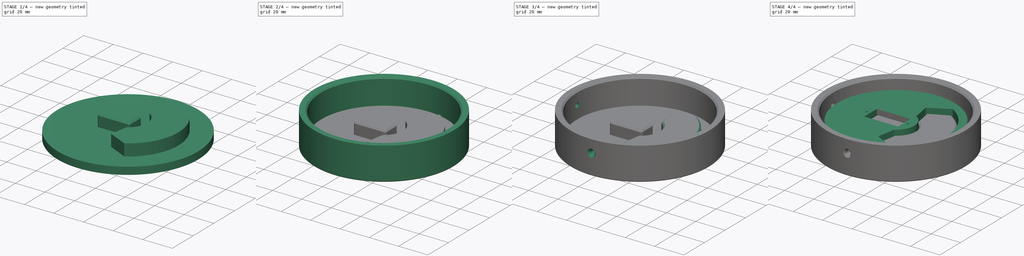
[diagram: build sequence overview — one tinted view per stage of 4, left to right]
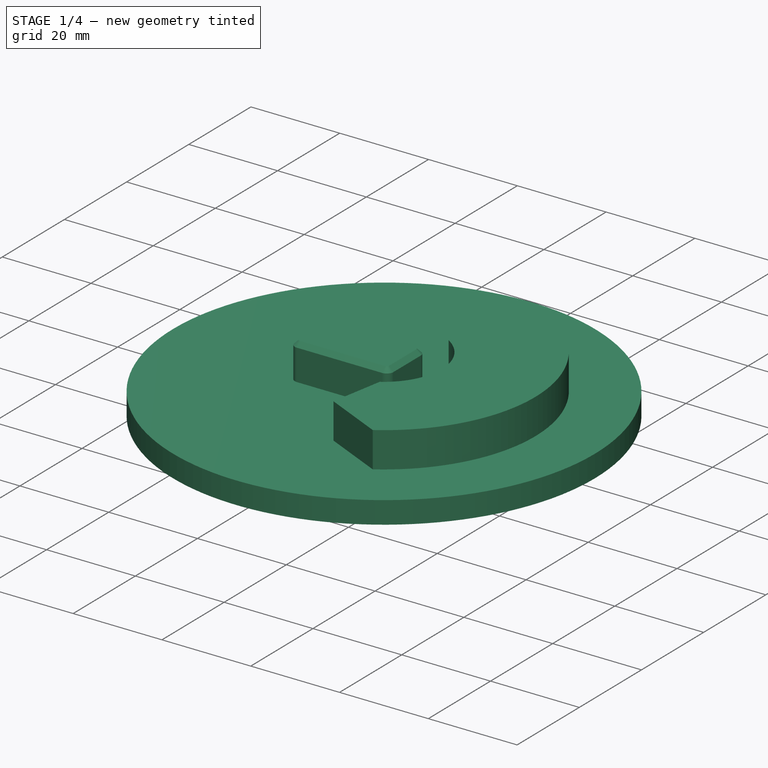
[diagram: stage 1 of 4 — iso view after this stage's code; geometry added in this stage tinted green]
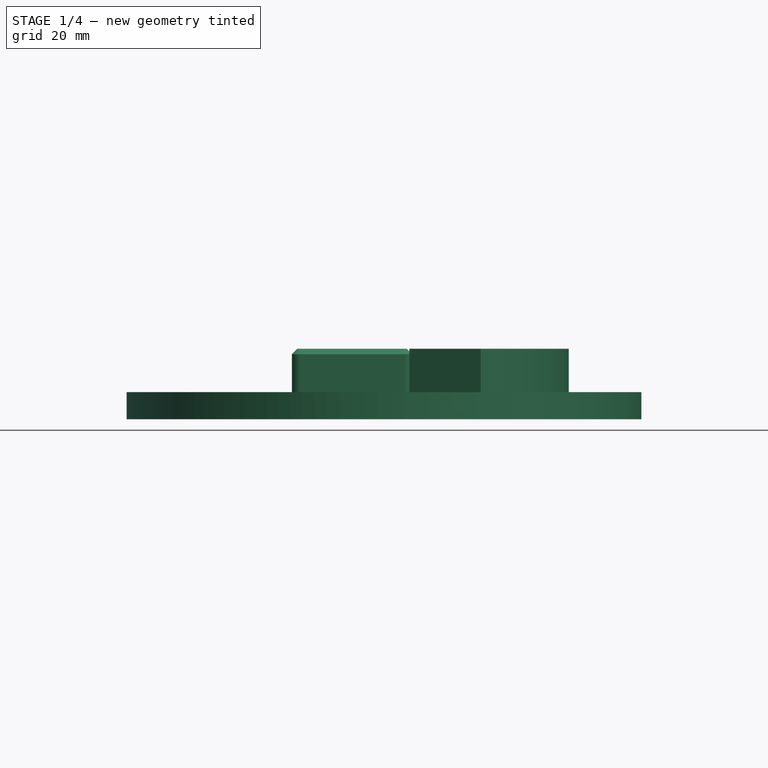
[diagram: stage 1 of 4 — front view after this stage's code; geometry added in this stage tinted green]
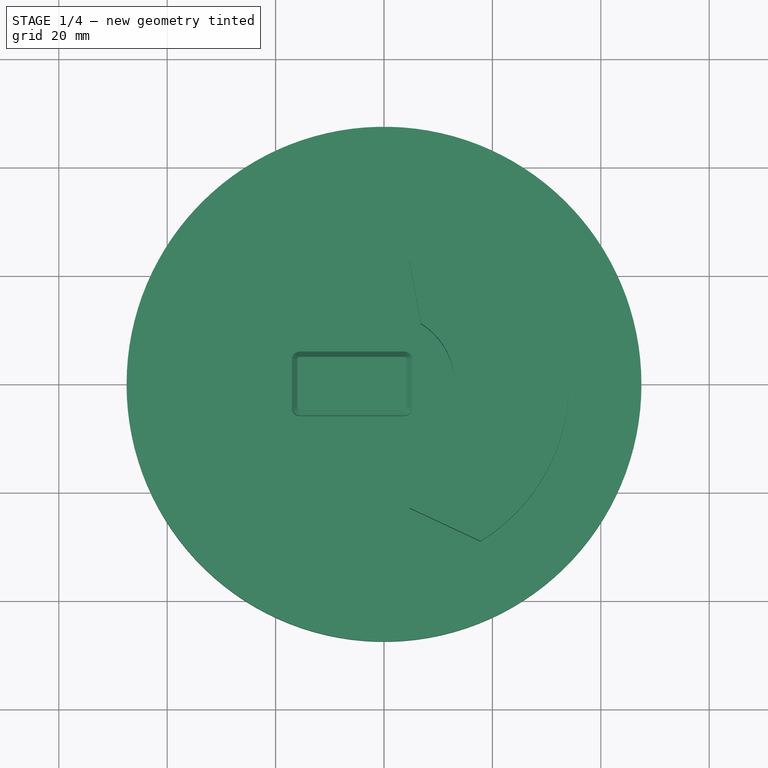
[diagram: stage 1 of 4 — top view after this stage's code; geometry added in this stage tinted green]
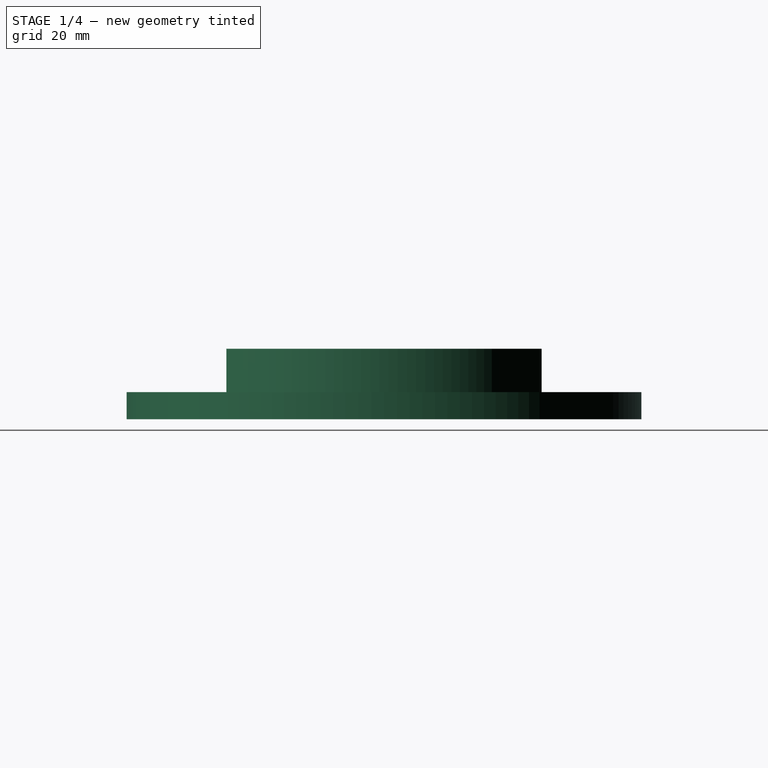
[diagram: stage 1 of 4 — right view after this stage's code; geometry added in this stage tinted green]
FCSTD DOCUMENT  (FreeCAD 1.0R39109 (Git))
Label: Top Servo Layer Jig
License: All rights reserved
LicenseURL: https://en.wikipedia.org/wiki/All_rights_reserved
objects: Sketcher::SketchObject×7, PartDesign::Chamfer×6, PartDesign::Pad×4, PartDesign::Pocket×3, PartDesign::Body×2, PartDesign::Plane×2, App::VarSet×1
note: 57 computed .brp shape members not serialized (recipe doc carries the construction recipe); baked Part::Feature solids carry a one-line shape summary decoded from their .brp

FEATURE [PartDesign::Body] Body010  label="top_layer"
  AllowCompound = false
  Group = -> [Sketch021,Pad010]
  Origin = -> Origin012
  Tip = -> Pad010
FEATURE [App::VarSet] VarSet
  Pipe_thickness = 5
  dowel_dia = 6.2
  fillet_radius = 1.5
  gem_hole_dia = 15.5
  gem_hole_offset = 20
  mdf_thickness = 7.5
  pipe_OD = 90
  rotation_tolerence = 2.5
  servo_leg_height = 24
  servo_length = 23
  servo_width = 12.3
  shaft_width = 9
  test_tube_dia = 17
  tube_inner_dia = 79.9
FEATURE [Sketcher::SketchObject] Sketch
  ArcFitTolerance = 1e-06
  AttachmentSupport = -> [XY_Plane]
  FullyConstrained = true
  MakeInternals = false
  MapMode = 5
  expr: Constraints[1] = 95
  sketch-geometry (1):
    g0: Circle CenterX=0 CenterY=0 CenterZ=0 NormalX=0 NormalY=0 NormalZ=1 AngleXU=0 Radius=47.5
  constraints (2):
    c: Coincident(g0,g-1)
    c: Diameter(g0) = 95
FEATURE [PartDesign::Pad] Pad
  Direction = (0,0,1)
  Length = 5
  Length2 = 10
  Profile = -> Sketch
  ReferenceAxis = -> Sketch [N_Axis]
  Refine = true
  Suppressed = false
  Type = 0
FEATURE [Sketcher::SketchObject] Sketch022
  ArcFitTolerance = 1e-06
  AttachmentSupport = -> [Pad]
  FullyConstrained = true
  MakeInternals = false
  MapMode = 5
  Placement = pos=(0,0,5) rot=(0,0,1;0rad)
  sketch-geometry (23):
    g0: LineSegment StartX=-15.5 StartY=-5.9 StartZ=0 EndX=3.7 EndY=-5.9 EndZ=0
    g1: LineSegment StartX=5.2 StartY=-4.4 StartZ=0 EndX=5.2 EndY=4.4 EndZ=0
    g2: LineSegment StartX=3.7 StartY=5.9 StartZ=0 EndX=-15.5 EndY=5.9 EndZ=0
    g3: LineSegment StartX=-17 StartY=4.4 StartZ=0 EndX=-17 EndY=-4.4 EndZ=0
    g4: GeomPoint [constr] X=-5.9 Y=0 Z=0
    g5: ArcOfCircle CenterX=-15.5 CenterY=4.4 CenterZ=0 NormalX=0 NormalY=0 NormalZ=1 AngleXU=0 Radius=1.5 StartAngle=1.5708 EndAngle=3.14159
    g6: GeomPoint [constr] X=-17 Y=5.9 Z=0
    g7: ArcOfCircle CenterX=3.7 CenterY=4.4 CenterZ=0 NormalX=0 NormalY=0 NormalZ=1 AngleXU=0 Radius=1.5 StartAngle=2e-16 EndAngle=1.5708
    g8: GeomPoint [constr] X=5.2 Y=5.9 Z=0
    g9: ArcOfCircle CenterX=3.7 CenterY=-4.4 CenterZ=0 NormalX=0 NormalY=0 NormalZ=1 AngleXU=0 Radius=1.5 StartAngle=4.71239 EndAngle=6.28319
    g10: GeomPoint [constr] X=5.2 Y=-5.9 Z=0
    g11: ArcOfCircle CenterX=-15.5 CenterY=-4.4 CenterZ=0 NormalX=0 NormalY=0 NormalZ=1 AngleXU=0 Radius=1.5 StartAngle=3.14159 EndAngle=4.71239
    g12: GeomPoint [constr] X=-17 Y=-5.9 Z=0
    g13: LineSegment [constr] StartX=0 StartY=0 StartZ=0 EndX=17.8172 EndY=29.075 EndZ=0
    g14: LineSegment [constr] StartX=0 StartY=0 StartZ=0 EndX=17.8172 EndY=-29.075 EndZ=0
    g15: ArcOfCircle CenterX=0 CenterY=0 CenterZ=0 NormalX=0 NormalY=0 NormalZ=1 AngleXU=0 Radius=13 StartAngle=5.26217 EndAngle=7.3042
    g16: ArcOfCircle CenterX=0 CenterY=0 CenterZ=0 NormalX=0 NormalY=0 NormalZ=1 AngleXU=0 Radius=34.1 StartAngle=5.26217 EndAngle=7.3042
    g17: LineSegment StartX=6.79248 StartY=-11.0843 StartZ=0 EndX=4.67385 EndY=-22.9381 EndZ=0
    g18: LineSegment StartX=17.8172 StartY=-29.075 StartZ=0 EndX=4.67385 EndY=-22.9381 EndZ=0
    g19: LineSegment StartX=17.8172 StartY=29.075 StartZ=0 EndX=4.67385 EndY=22.9381 EndZ=0
    g20: LineSegment StartX=4.67385 StartY=22.9381 StartZ=0 EndX=6.79248 EndY=11.0843 EndZ=0
    g21: LineSegment [constr] StartX=4.67385 StartY=22.9381 StartZ=0 EndX=11.495 EndY=18.7581 EndZ=0
    g22: LineSegment [constr] StartX=4.67385 StartY=-22.9381 StartZ=0 EndX=11.495 EndY=-18.7581 EndZ=0
  constraints (57):
    c: Horizontal(g0)
    c: Horizontal(g2)
    c: Vertical(g1)
    c: Vertical(g3)
    c: Symmetric(g8,g12,g4)
    c: Distance(g10,g12) = 22.2
    c: Distance(g12,g6) = 11.8
    c: PointOnObject(g4,g-1)
    c: DistanceX(g4,g-1) = 5.9
    c: PointOnObject(g6,g3)
    c: PointOnObject(g6,g2)
    c: Tangent(g3,g5) = -1.5708
    c: Tangent(g2,g5) = -1.5708
    c: PointOnObject(g8,g2)
    c: PointOnObject(g8,g1)
    c: Tangent(g2,g7) = -1.5708
    c: Tangent(g1,g7) = -1.5708
    c: PointOnObject(g10,g1)
    c: PointOnObject(g10,g0)
    c: Tangent(g1,g9) = -1.5708
    c: Tangent(g0,g9) = -1.5708
    c: PointOnObject(g12,g0)
    c: PointOnObject(g12,g3)
    c: Tangent(g0,g11) = -1.5708
    c: Tangent(g3,g11) = -1.5708
    c: Diameter(g5) = 3
    c: Diameter(g7) = 3
    c: Diameter(g9) = 3
    c: Diameter(g11) = 3
    c: Distance(g14,g14) = 34.1
    c: Angle(g14,g13) = 2.04204
    c: Angle(g13,g-2) = 0.549779
    c: PointOnObject(g15,g13)
    c: PointOnObject(g15,g14)
    c: Diameter(g15) = 26
    c: Coincident(g16,g14)
    c: Coincident(g13,g16)
    c: Coincident(g17,g15)
    c: Coincident(g18,g14)
    c: Coincident(g18,g17)
    c: Coincident(g19,g13)
    c: Coincident(g20,g19)
    c: Coincident(g20,g15)
    c: Coincident(g14,g-1)
    c: Coincident(g14,g15)
    c: Coincident(g16,g13)
    c: Coincident(g13,g14)
    c: Coincident(g21,g19)
    c: PointOnObject(g21,g13)
    c: Distance(g21) = 8
    c: Distance(g21,g13) = 22
    c: Perpendicular(g13,g21)
    c: Coincident(g22,g17)
    c: PointOnObject(g22,g14)
    c: Perpendicular(g14,g22)
    c: Distance(g13,g22) = 22
    c: Distance(g22) = 8
FEATURE [PartDesign::Pad] Pad011
  BaseFeature = -> Pad
  Direction = (0,0,1)
  Length = 8
  Length2 = 10
  Profile = -> Sketch022
  ReferenceAxis = -> Sketch022 [N_Axis]
  Refine = true
  Suppressed = false
  Type = 0
FEATURE [PartDesign::Chamfer] Chamfer
  Angle = 45
  Base = -> Pad011 [Edge20]
  BaseFeature = -> Pad011
  ChamferType = 0
  FlipDirection = false
  Refine = true
  Size = 1
  Size2 = 1
  SupportTransform = false
  Suppressed = false
  UseAllEdges = false
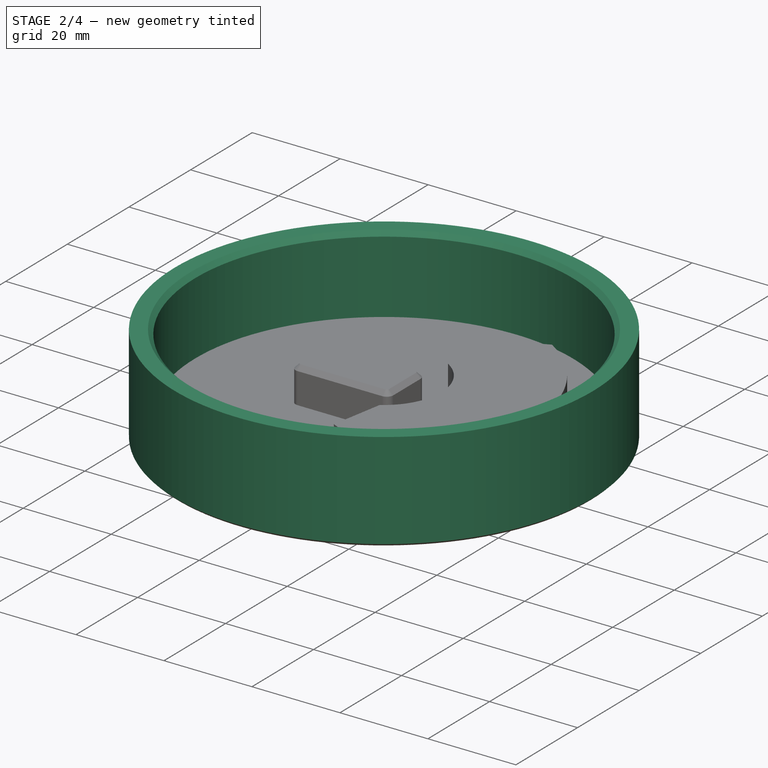
[diagram: stage 2 of 4 — iso view after this stage's code; geometry added in this stage tinted green]
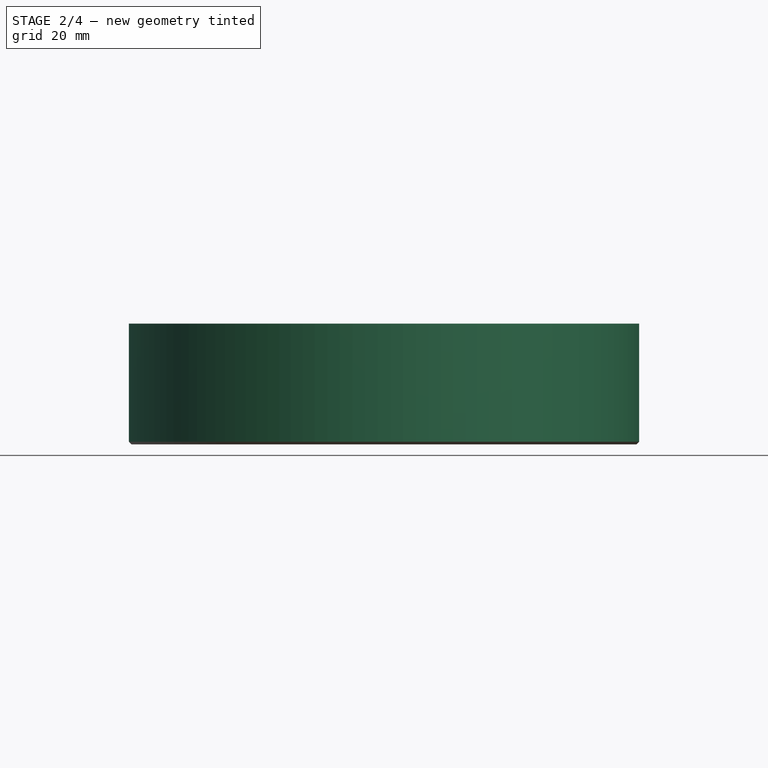
[diagram: stage 2 of 4 — front view after this stage's code; geometry added in this stage tinted green]
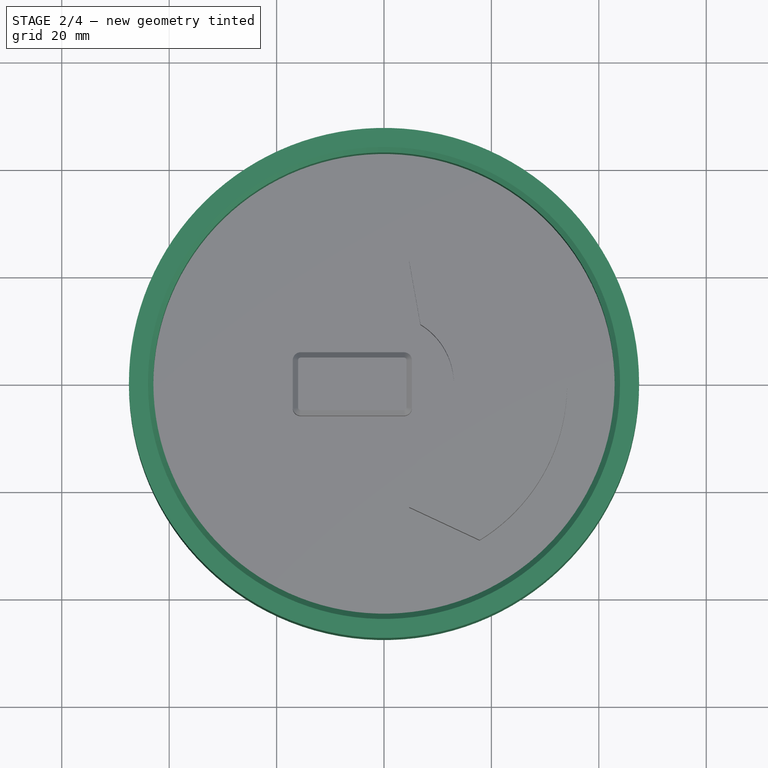
[diagram: stage 2 of 4 — top view after this stage's code; geometry added in this stage tinted green]
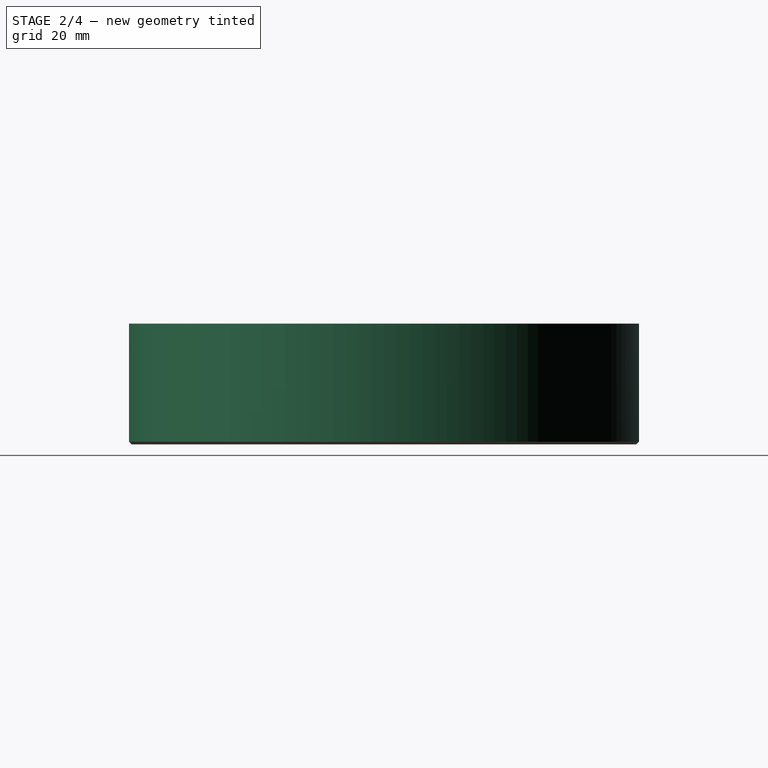
[diagram: stage 2 of 4 — right view after this stage's code; geometry added in this stage tinted green]
FEATURE [Sketcher::SketchObject] Sketch023
  ArcFitTolerance = 1e-06
  AttachmentSupport = -> [Chamfer]
  FullyConstrained = true
  MakeInternals = false
  MapMode = 5
  Placement = pos=(0,0,5) rot=(0,0,1;0rad)
  sketch-geometry (2):
    g0: Circle CenterX=0 CenterY=0 CenterZ=0 NormalX=0 NormalY=0 NormalZ=1 AngleXU=0 Radius=47.5
    g1: Circle CenterX=0 CenterY=0 CenterZ=0 NormalX=0 NormalY=0 NormalZ=1 AngleXU=0 Radius=42.95
  constraints (4):
    c: Diameter(g0) = 95
    c: Coincident(g0,g-1)
    c: Diameter(g1) = 85.9
    c: Coincident(g1,g0)
FEATURE [PartDesign::Pad] Pad012
  BaseFeature = -> Chamfer
  Direction = (0,0,1)
  Length = 17.5
  Length2 = 10
  Profile = -> Sketch023
  ReferenceAxis = -> Sketch023 [N_Axis]
  Refine = true
  Suppressed = false
  Type = 0
FEATURE [PartDesign::Chamfer] Chamfer001
  Angle = 45
  Base = -> Pad012 [Edge41]
  BaseFeature = -> Pad012
  ChamferType = 0
  FlipDirection = false
  Refine = true
  Size = 1
  Size2 = 1
  SupportTransform = false
  Suppressed = false
  UseAllEdges = false
FEATURE [PartDesign::Chamfer] Chamfer002
  Angle = 45
  Base = -> Chamfer001 [Edge49]
  BaseFeature = -> Chamfer001
  ChamferType = 0
  FlipDirection = false
  Refine = true
  Size = 0.5
  Size2 = 1
  SupportTransform = false
  Suppressed = false
  UseAllEdges = false
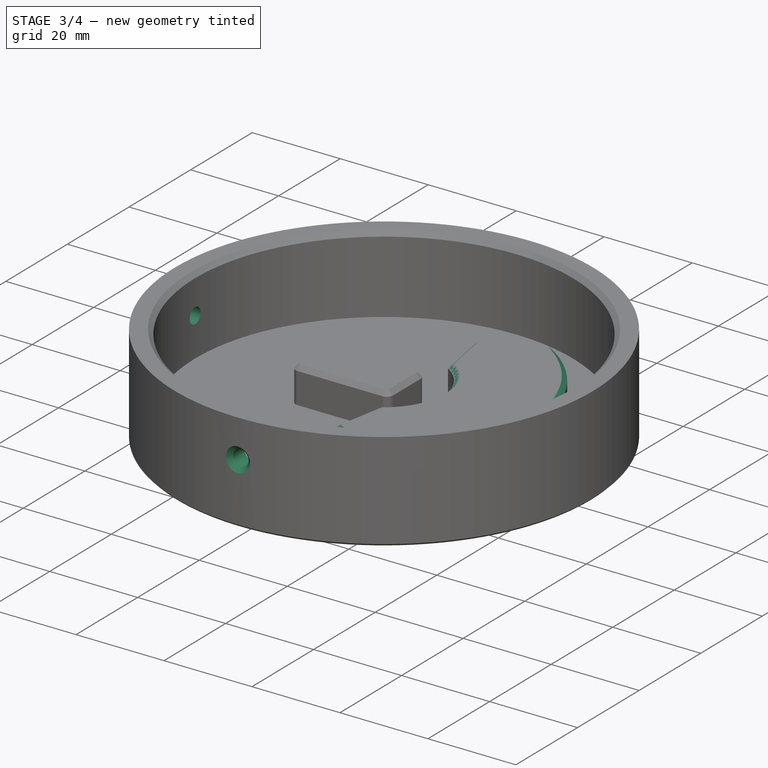
[diagram: stage 3 of 4 — iso view after this stage's code; geometry added in this stage tinted green]
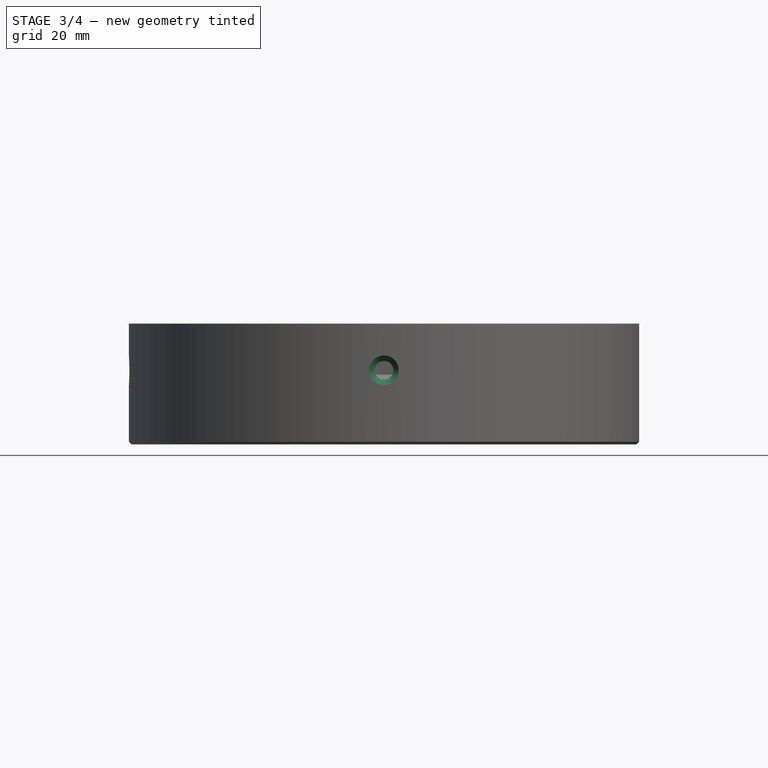
[diagram: stage 3 of 4 — front view after this stage's code; geometry added in this stage tinted green]
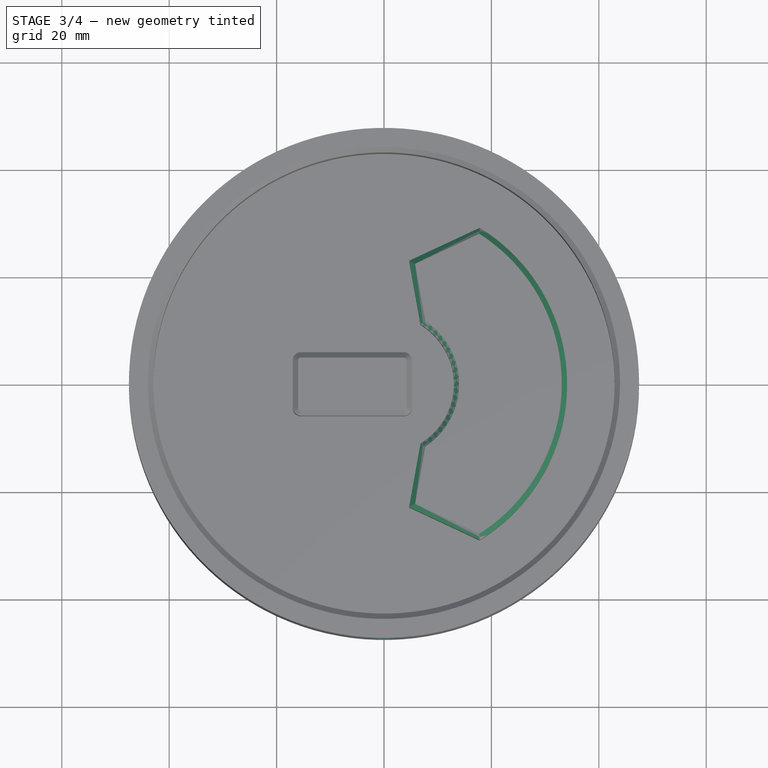
[diagram: stage 3 of 4 — top view after this stage's code; geometry added in this stage tinted green]
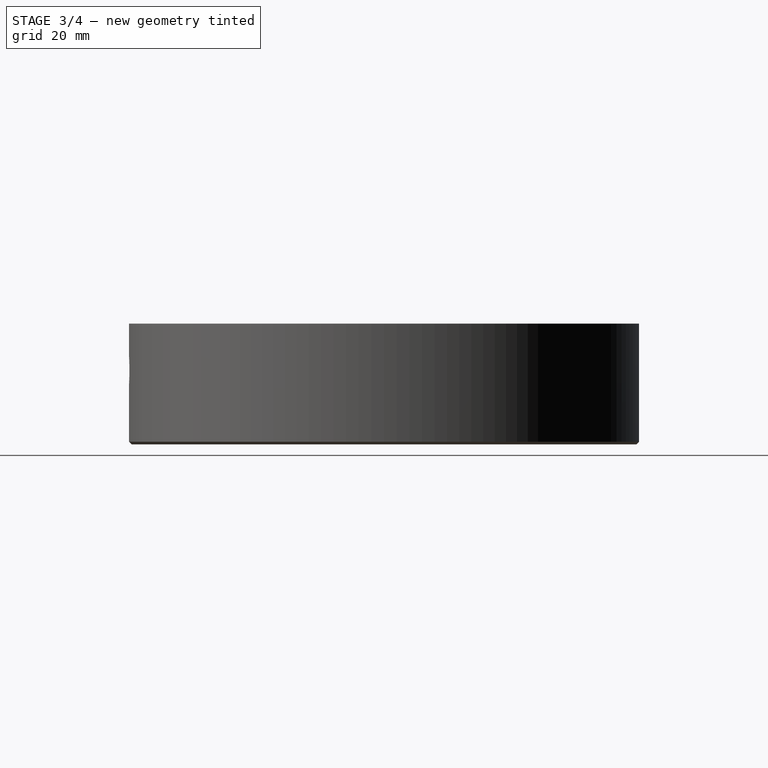
[diagram: stage 3 of 4 — right view after this stage's code; geometry added in this stage tinted green]
FEATURE [PartDesign::Plane] DatumPlane
  AttachmentOffset = pos=(-50,0,0) rot=(0,1,0;1.5708rad)
  AttachmentSupport = -> [Chamfer002]
  Length = 60
  MapMode = 5
  Placement = pos=(-50,0,22.5) rot=(0,1,0;1.5708rad)
  ResizeMode = 0
  Width = 60
FEATURE [PartDesign::Plane] DatumPlane001
  AttachmentOffset = pos=(0,-50,0) rot=(1,0,0;1.5708rad)
  AttachmentSupport = -> [Chamfer002]
  Length = 60
  MapMode = 5
  Placement = pos=(0,-50,22.5) rot=(1,0,0;1.5708rad)
  ResizeMode = 0
  Width = 60
  expr: .AttachmentOffset.Base.y = -50 mm
FEATURE [Sketcher::SketchObject] Sketch024
  ArcFitTolerance = 1e-06
  AttachmentSupport = -> [DatumPlane]
  FullyConstrained = true
  MakeInternals = false
  MapMode = 5
  Placement = pos=(-50,0,22.5) rot=(0,1,0;1.5708rad)
  sketch-geometry (1):
    g0: Circle CenterX=8.7 CenterY=0 CenterZ=0 NormalX=0 NormalY=0 NormalZ=1 AngleXU=0 Radius=1.75
  constraints (3):
    c: Diameter(g0) = 3.5
    c: PointOnObject(g0,g-1)
    c: DistanceX(g-1,g0) = 8.7
FEATURE [PartDesign::Pocket] Pocket
  BaseFeature = -> Chamfer002
  Direction = (-1,0,-2e-16)
  Length = 8
  Length2 = 5
  Profile = -> Sketch024
  ReferenceAxis = -> Sketch024 [N_Axis]
  Refine = true
  Reversed = true
  Suppressed = false
  Type = 0
FEATURE [Sketcher::SketchObject] Sketch025
  ArcFitTolerance = 1e-06
  AttachmentSupport = -> [DatumPlane001]
  FullyConstrained = true
  MakeInternals = false
  MapMode = 5
  Placement = pos=(0,-50,22.5) rot=(1,0,0;1.5708rad)
  sketch-geometry (1):
    g0: Circle CenterX=0 CenterY=-8.7 CenterZ=0 NormalX=0 NormalY=0 NormalZ=1 AngleXU=0 Radius=1.75
  constraints (3):
    c: Diameter(g0) = 3.5
    c: PointOnObject(g0,g-2)
    c: DistanceY(g0,g-1) = 8.7
FEATURE [PartDesign::Pocket] Pocket001
  BaseFeature = -> Pocket
  Direction = (0,1,-2e-16)
  Length = 8
  Length2 = 5
  Profile = -> Sketch025
  ReferenceAxis = -> Sketch025 [N_Axis]
  Refine = true
  Suppressed = false
  Type = 0
FEATURE [PartDesign::Chamfer] Chamfer003
  Angle = 45
  Base = -> Pocket001 [Edge4,Edge5]
  BaseFeature = -> Pocket001
  ChamferType = 0
  FlipDirection = false
  Refine = true
  Size = 1
  Size2 = 1
  SupportTransform = false
  Suppressed = false
  UseAllEdges = false
FEATURE [PartDesign::Chamfer] Chamfer004
  Angle = 45
  Base = -> Chamfer003 [Edge59,Edge62,Edge61,Edge57,Edge53,Edge55]
  BaseFeature = -> Chamfer003
  ChamferType = 0
  FlipDirection = false
  Refine = true
  Size = 1
  Size2 = 1
  SupportTransform = false
  Suppressed = false
  UseAllEdges = false
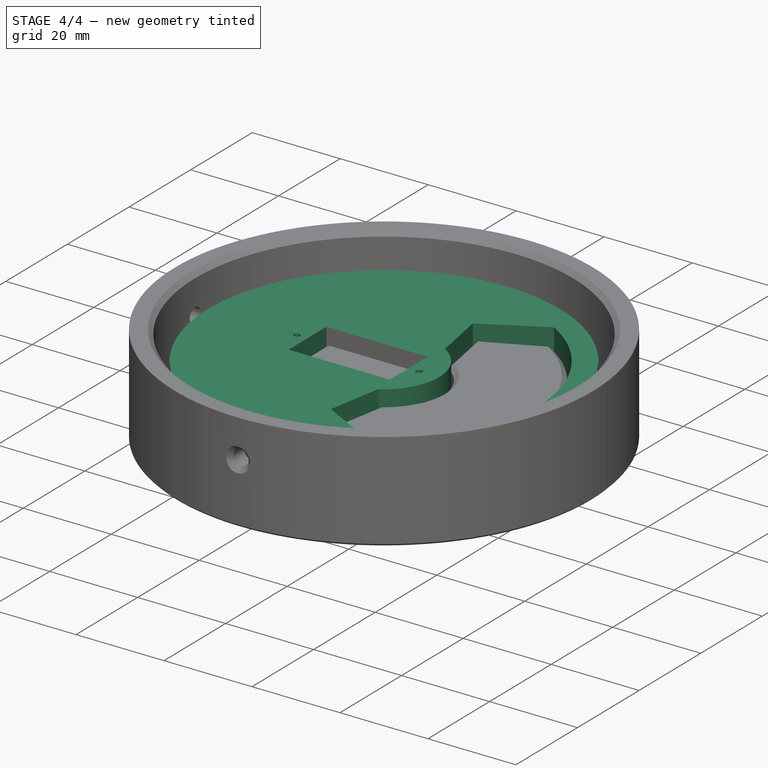
[diagram: stage 4 of 4 — iso view after this stage's code; geometry added in this stage tinted green]
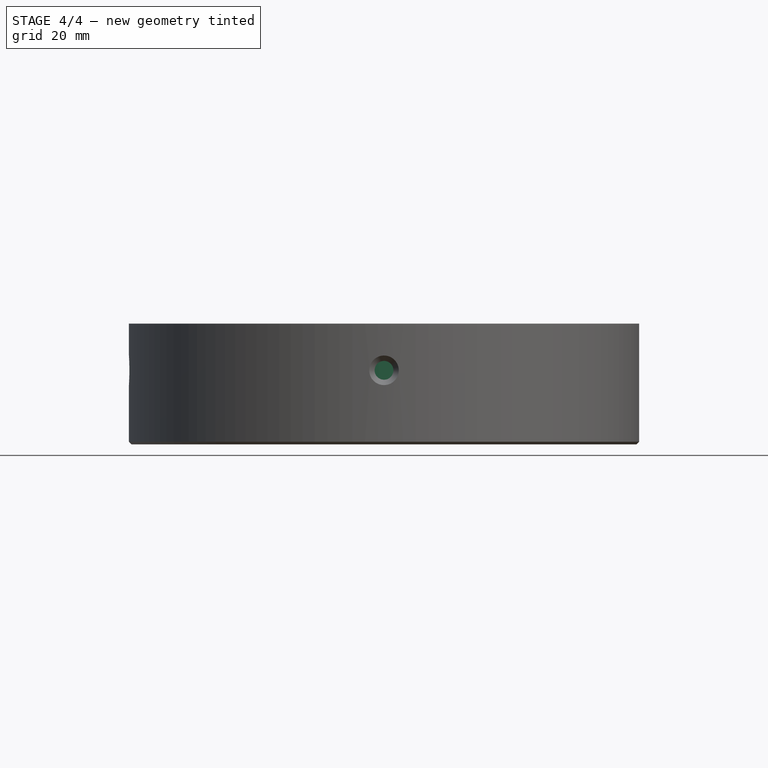
[diagram: stage 4 of 4 — front view after this stage's code; geometry added in this stage tinted green]
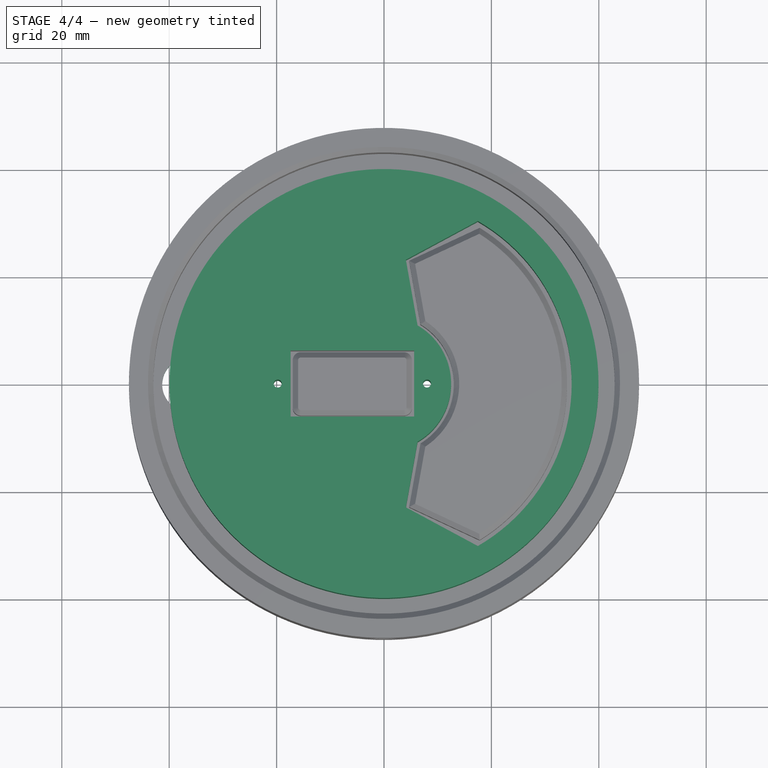
[diagram: stage 4 of 4 — top view after this stage's code; geometry added in this stage tinted green]
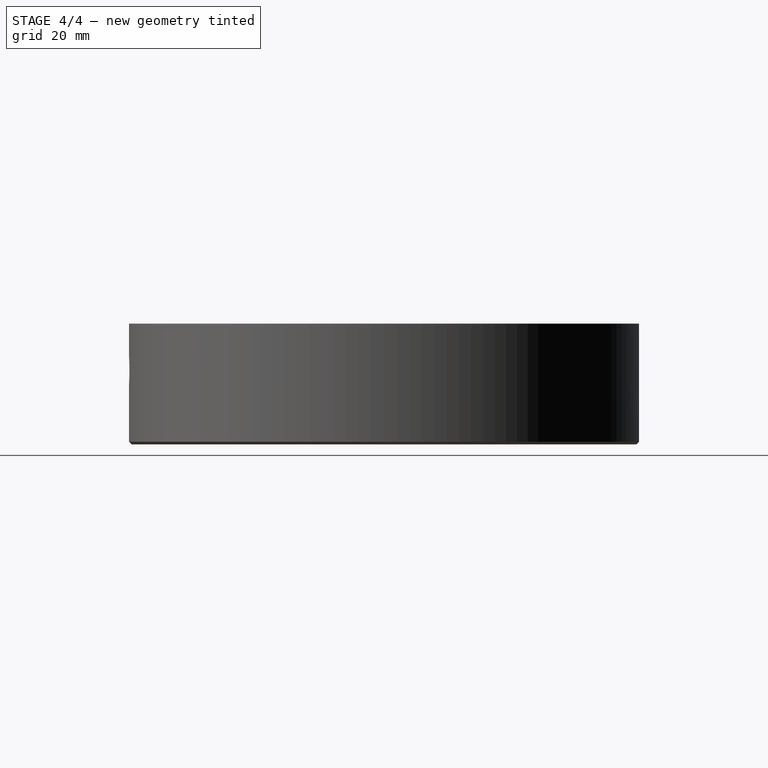
[diagram: stage 4 of 4 — right view after this stage's code; geometry added in this stage tinted green]
FEATURE [Sketcher::SketchObject] Sketch021
  ArcFitTolerance = 1e-06
  AttachmentSupport = -> [XY_Plane012]
  FullyConstrained = true
  MakeInternals = false
  MapMode = 5
  sketch-geometry (18):
    g0: Circle CenterX=0 CenterY=0 CenterZ=0 NormalX=0 NormalY=0 NormalZ=1 AngleXU=0 Radius=39.95
    g1: LineSegment [constr] StartX=0 StartY=0 StartZ=0 EndX=17.475 EndY=30.2676 EndZ=0
    g2: LineSegment [constr] StartX=0 StartY=0 StartZ=0 EndX=17.475 EndY=-30.2676 EndZ=0
    g3: ArcOfCircle CenterX=0 CenterY=0 CenterZ=0 NormalX=0 NormalY=0 NormalZ=1 AngleXU=0 Radius=12.5 StartAngle=5.23599 EndAngle=7.33038
    g4: ArcOfCircle CenterX=0 CenterY=0 CenterZ=0 NormalX=0 NormalY=0 NormalZ=1 AngleXU=0 Radius=34.95 StartAngle=5.23599 EndAngle=7.33038
    g5: LineSegment StartX=6.25 StartY=-10.8253 StartZ=0 EndX=4.07179 EndY=-23.0526 EndZ=0
    g6: LineSegment StartX=17.475 StartY=-30.2676 StartZ=0 EndX=4.07179 EndY=-23.0526 EndZ=0
    g7: LineSegment StartX=17.475 StartY=30.2676 StartZ=0 EndX=4.0718 EndY=23.0526 EndZ=0
    g8: LineSegment StartX=4.0718 StartY=23.0526 StartZ=0 EndX=6.25 EndY=10.8253 EndZ=0
    g9: LineSegment [constr] StartX=11 StartY=-19.0526 StartZ=0 EndX=4.07179 EndY=-23.0526 EndZ=0
    g10: LineSegment [constr] StartX=11 StartY=19.0526 StartZ=0 EndX=4.0718 EndY=23.0526 EndZ=0
    g11: LineSegment StartX=-17.4 StartY=6.15 StartZ=0 EndX=-17.4 EndY=-6.15 EndZ=0
    g12: LineSegment StartX=-17.4 StartY=-6.15 StartZ=0 EndX=5.6 EndY=-6.15 EndZ=0
    g13: LineSegment StartX=5.6 StartY=-6.15 StartZ=0 EndX=5.6 EndY=6.15 EndZ=0
    g14: LineSegment StartX=5.6 StartY=6.15 StartZ=0 EndX=-17.4 EndY=6.15 EndZ=0
    g15: GeomPoint [constr] X=-5.9 Y=0 Z=0
    g16: Circle CenterX=8 CenterY=0 CenterZ=0 NormalX=0 NormalY=0 NormalZ=1 AngleXU=0 Radius=0.75
    g17: Circle CenterX=-19.8 CenterY=0 CenterZ=0 NormalX=0 NormalY=0 NormalZ=1 AngleXU=0 Radius=0.75
  constraints (49):
    c: Coincident(g0,g-1)
    c: Diameter(g0) = 79.9
    c: Coincident(g1,g0)
    c: Coincident(g2,g0)
    c: Distance(g2,g2) = 34.95
    c: Angle(g2,g1) = 2.0944
    c: Angle(g1,g-2) = 0.523599
    c: Coincident(g3,g0)
    c: PointOnObject(g3,g1)
    c: PointOnObject(g3,g2)
    c: Diameter(g3) = 25
    c: Coincident(g4,g0)
    c: Coincident(g4,g2)
    c: Coincident(g1,g4)
    c: Coincident(g5,g3)
    c: Coincident(g6,g2)
    c: Coincident(g6,g5)
    c: Coincident(g7,g1)
    c: Coincident(g8,g7)
    c: Coincident(g8,g3)
    c: PointOnObject(g9,g2)
    c: Coincident(g9,g5)
    c: Perpendicular(g2,g9)
    c: PointOnObject(g10,g1)
    c: Coincident(g10,g7)
    c: Distance(g9,g-1) = 22
    c: Distance(g9,g5) = 8
    c: Distance(g10,g7) = 8
    c: Perpendicular(g1,g10)
    c: Distance(g10,g-1) = 22
    c: Coincident(g11,g12)
    c: Coincident(g12,g13)
    c: Coincident(g13,g14)
    c: Coincident(g14,g11)
    c: Vertical(g11)
    c: Vertical(g13)
    c: Horizontal(g12)
    c: Horizontal(g14)
    c: Symmetric(g13,g11,g15)
    c: PointOnObject(g15,g-1)
    c: DistanceY(g11,g11) = 12.3
    c: DistanceX(g14,g14) = 23
    c: DistanceX(g15,g-1) = 5.9
    c: Diameter(g16) = 1.5
    c: PointOnObject(g16,g-1)
    c: Diameter(g17) = 1.5
    c: PointOnObject(g17,g-1)
    c: Distance(g17,g11) = 2.4
    c: Distance(g16,g13) = 2.4
FEATURE [PartDesign::Pad] Pad010
  Direction = (0,0,1)
  Length = 16
  Length2 = 10
  Profile = -> Sketch021
  ReferenceAxis = -> Sketch021 [N_Axis]
  Refine = true
  Suppressed = false
  Type = 0
FEATURE [Sketcher::SketchObject] Sketch026
  ArcFitTolerance = 1e-06
  AttachmentSupport = -> [Chamfer004]
  FullyConstrained = true
  MakeInternals = false
  MapMode = 5
  Placement = pos=(0,0,5) rot=(0,0,1;0rad)
  sketch-geometry (3):
    g0: Circle CenterX=8 CenterY=0 CenterZ=0 NormalX=0 NormalY=0 NormalZ=1 AngleXU=0 Radius=1.1
    g1: Circle CenterX=-19.8 CenterY=0 CenterZ=0 NormalX=0 NormalY=0 NormalZ=1 AngleXU=0 Radius=1.1
    g2: Circle CenterX=-36.3 CenterY=0 CenterZ=0 NormalX=0 NormalY=0 NormalZ=1 AngleXU=0 Radius=5
  constraints (9):
    c: Diameter(g0) = 2.2
    c: PointOnObject(g0,g-1)
    c: Diameter(g1) = 2.2
    c: PointOnObject(g1,g-1)
    c: Diameter(g2) = 10
    c: PointOnObject(g2,g-1)
    c: DistanceX(g2,g-1) = 36.3
    c: DistanceX(g1,g-1) = 19.8
    c: DistanceX(g-1,g0) = 8
FEATURE [PartDesign::Pocket] Pocket002
  BaseFeature = -> Chamfer004
  Direction = (0,0,-1)
  Length = 8
  Length2 = 5
  Profile = -> Sketch026
  ReferenceAxis = -> Sketch026 [N_Axis]
  Refine = true
  Suppressed = false
  Type = 0
FEATURE [PartDesign::Chamfer] Chamfer005
  Angle = 45
  Base = -> Pocket002 [Edge63,Edge45,Edge43]
  BaseFeature = -> Pocket002
  ChamferType = 0
  FlipDirection = false
  Refine = true
  Size = 1
  Size2 = 1
  SupportTransform = false
  Suppressed = false
  UseAllEdges = false
FEATURE [PartDesign::Body] Body  label="Top Servo Layer Jig"
  AllowCompound = false
  Group = -> [Sketch,Pad,Sketch022,Pad011,Chamfer,Sketch023,Pad012,Chamfer001,Chamfer002,DatumPlane,DatumPlane001,Sketch024,Pocket,Sketch025,Pocket001,Chamfer003,Chamfer004,Sketch026,Pocket002,Chamfer005]
  Origin = -> Origin
  Tip = -> Chamfer005
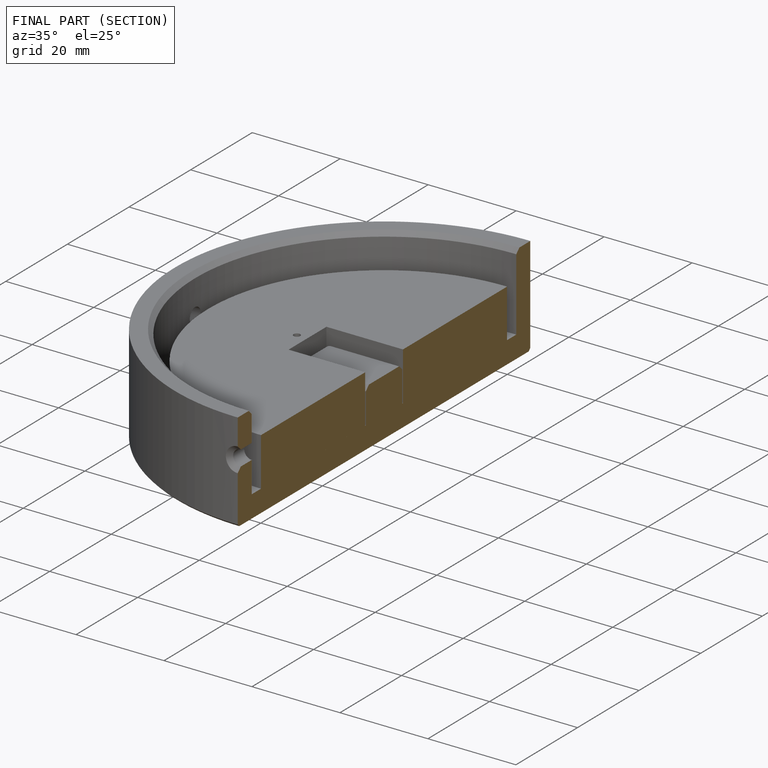
[diagram: finished part — half-section view (interior)]
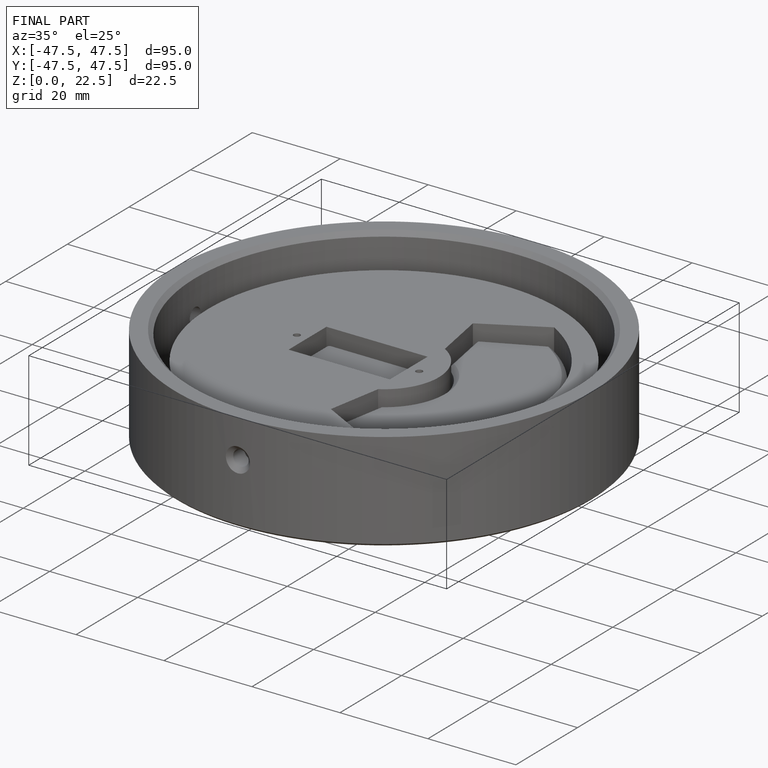
[diagram: finished part — iso view with bounding-box wireframe]
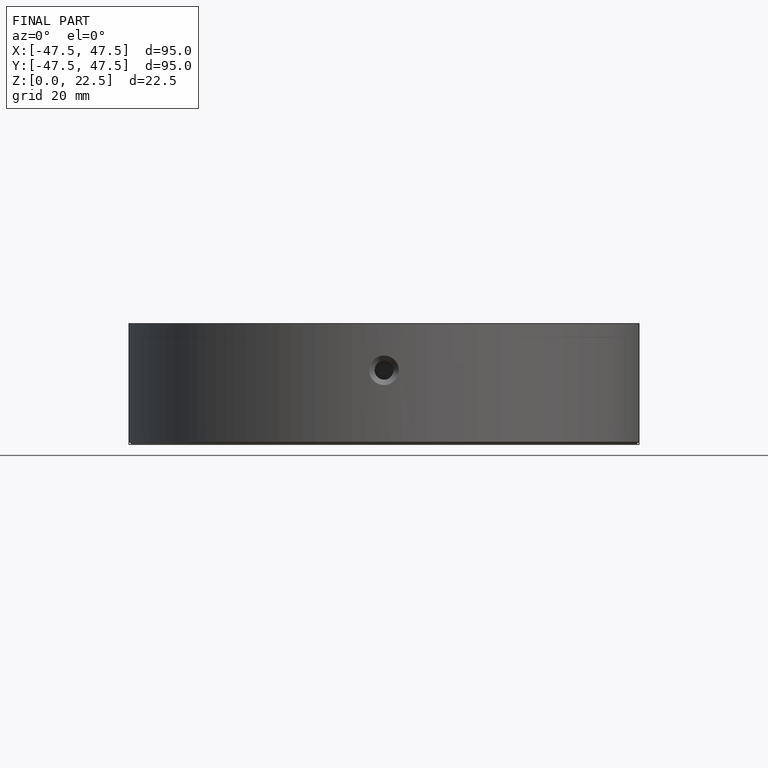
[diagram: finished part — front view with bounding-box wireframe]
